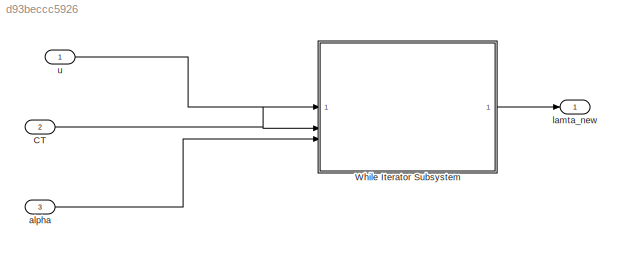
MODEL slx_d93beccc5926
KIND model
CONFIG AbsTol = auto
CONFIG EnableMultiTasking = off
CONFIG FixedStep = auto
CONFIG MaxStep = auto
CONFIG MinStep = auto
CONFIG RelTol = 1e-3
CONFIG SampleTimeConstraint = Unconstrained
CONFIG SolverName = VariableStepAuto
CONFIG StartTime = 0.0
CONFIG StopTime = 10.0
BLOCK [Inport] CT
  Port = 2
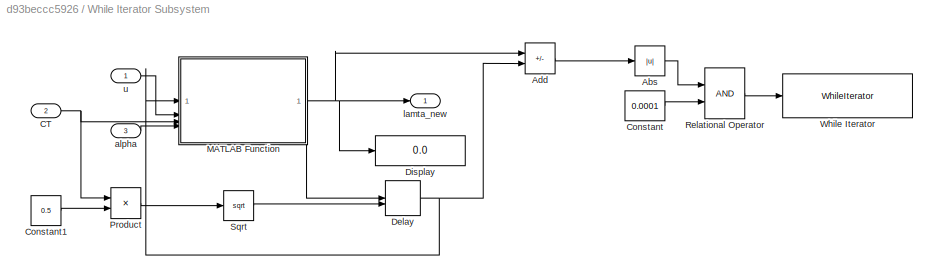
BLOCK [SubSystem] While Iterator Subsystem
  TreatAsAtomicUnit = on
BLOCK [Abs] While Iterator Subsystem/Abs
  SaturateOnIntegerOverflow = off
BLOCK [Sum] While Iterator Subsystem/Add
  IconShape = rectangular
  Inputs = +-
BLOCK [Inport] While Iterator Subsystem/CT
  Port = 2
BLOCK [Constant] While Iterator Subsystem/Constant
  Value = 0.0001
BLOCK [Constant] While Iterator Subsystem/Constant1
  Value = 0.5
BLOCK [Delay] While Iterator Subsystem/Delay
  DelayLength = 1
  InitialConditionSource = Input port
  InputPortMap = u0,p4
BLOCK [Display] While Iterator Subsystem/Display
  Decimation = 1
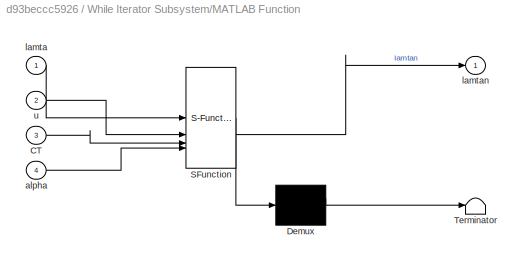
BLOCK [SubSystem] While Iterator Subsystem/MATLAB Function
  ErrorFcn = Stateflow.Translate.translate
  PermitHierarchicalResolution = ExplicitOnly
  SFBlockType = MATLAB Function
  TreatAsAtomicUnit = on
BLOCK [Demux] While Iterator Subsystem/MATLAB Function/ Demux 
  Outputs = 1
BLOCK [S-Function] While Iterator Subsystem/MATLAB Function/ SFunction 
  EnableBusSupport = on
  FunctionName = sf_sfun
  PortCounts = [4 2]
  SFcnIsStateOwnerBlock = off
  SFunctionDeploymentMode = off
  Tag = Stateflow S-Function 2
BLOCK [Terminator] While Iterator Subsystem/MATLAB Function/ Terminator 
BLOCK [Inport] While Iterator Subsystem/MATLAB Function/CT
  Port = 3
BLOCK [Inport] While Iterator Subsystem/MATLAB Function/alpha
  Port = 4
BLOCK [Inport] While Iterator Subsystem/MATLAB Function/lamta
BLOCK [Outport] While Iterator Subsystem/MATLAB Function/lamtan
BLOCK [Inport] While Iterator Subsystem/MATLAB Function/u
  Port = 2
BLOCK [Product] While Iterator Subsystem/Product
BLOCK [RelationalOperator] While Iterator Subsystem/Relational Operator
  InputSameDT = off
  OutDataTypeStr = boolean
  RndMeth = Simplest
BLOCK [Sqrt] While Iterator Subsystem/Sqrt
BLOCK [WhileIterator] While Iterator Subsystem/While Iterator
  MaxIters = 8
  WhileBlockType = do-while
BLOCK [Inport] While Iterator Subsystem/alpha
  Port = 3
BLOCK [Outport] While Iterator Subsystem/lamta_new
BLOCK [Inport] While Iterator Subsystem/u
BLOCK [Inport] alpha
  Port = 3
BLOCK [Outport] lamta_new
BLOCK [Inport] u
LINE CT:1 -> While Iterator Subsystem:2
LINE While Iterator Subsystem/Abs:1 -> While Iterator Subsystem/Relational Operator:1
LINE While Iterator Subsystem/Add:1 -> While Iterator Subsystem/Abs:1
NET While Iterator Subsystem/CT:1 -> While Iterator Subsystem/MATLAB Function:3, While Iterator Subsystem/Product:1
LINE While Iterator Subsystem/Constant1:1 -> While Iterator Subsystem/Product:2
LINE While Iterator Subsystem/Constant:1 -> While Iterator Subsystem/Relational Operator:2
NET While Iterator Subsystem/Delay:1 -> While Iterator Subsystem/Add:2, While Iterator Subsystem/MATLAB Function:1
NET While Iterator Subsystem/MATLAB Function:1 -> While Iterator Subsystem/Add:1, While Iterator Subsystem/Delay:1, While Iterator Subsystem/Display:1, While Iterator Subsystem/lamta_new:1
LINE While Iterator Subsystem/Product:1 -> While Iterator Subsystem/Sqrt:1
LINE While Iterator Subsystem/Relational Operator:1 -> While Iterator Subsystem/While Iterator:1
LINE While Iterator Subsystem/Sqrt:1 -> While Iterator Subsystem/Delay:2
LINE While Iterator Subsystem/alpha:1 -> While Iterator Subsystem/MATLAB Function:4
LINE While Iterator Subsystem/u:1 -> While Iterator Subsystem/MATLAB Function:2
LINE While Iterator Subsystem:1 -> lamta_new:1
LINE alpha:1 -> While Iterator Subsystem:3
LINE u:1 -> While Iterator Subsystem:1
note: NET lines group one-source signal fan-out (src -> all destinations, sorted); 1:1 wires keep LINE
CHART While Iterator
Subsystem/MATLAB Function states=1 transitions=1
  STATE_LABEL 'eML_blk_kernel()'
  STATE_LABEL 'SCRIPT:\nfunction lamtan = fcn( lamta,u,CT,alpha)\n\nalpha=alpha/57.3;\nf=lamta-u*tan(alpha)-0.5*CT/sqrt(lamta^2+u^2);\ndf=1+lamta*CT/2*power(u^2+lamta^2,-1.5);\n\nlamtan=lamta-f/df;\n'
CHART  states=0 transitions=0
